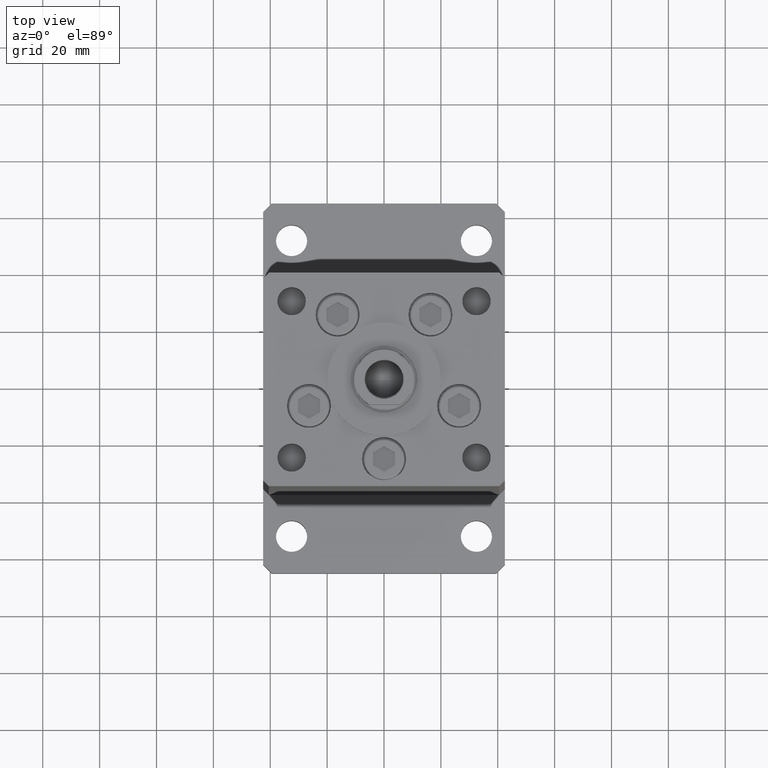
[diagram: clean part render]
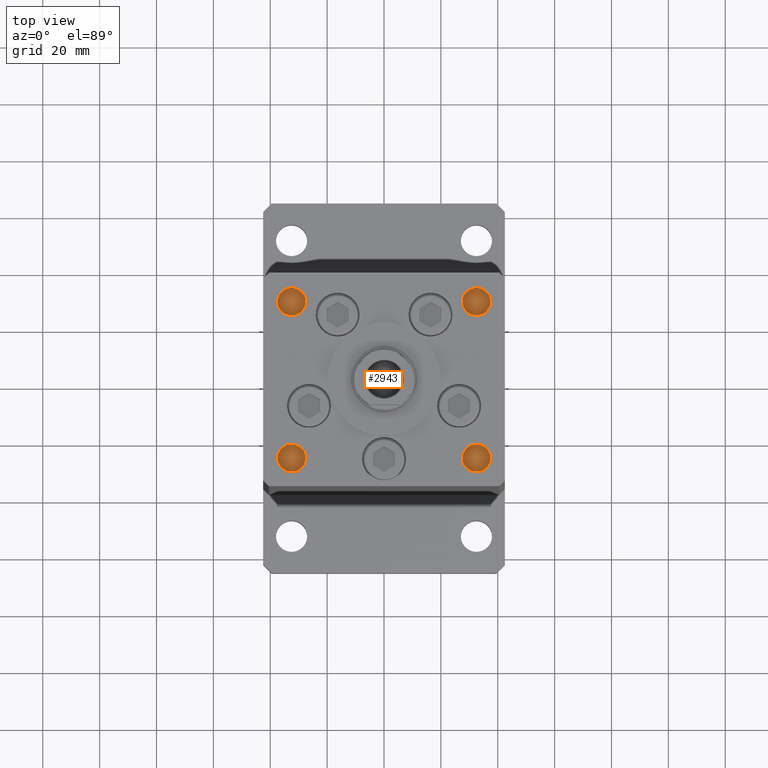
[diagram: same view with one face highlighted and labeled with its STEP entity id]
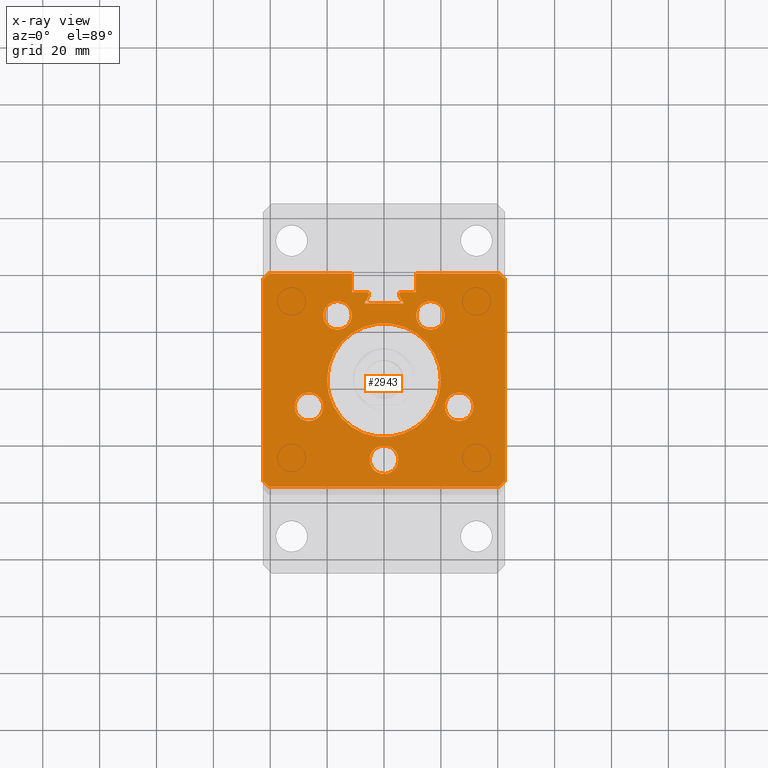
[diagram: x-ray of the same camera — body ghosted, the highlighted face saturated]
A machine part, top view. The second image highlights one B-rep face of the part: STEP entity #2943.
The next image is the same camera in x-ray: the body ghosted, the highlighted face saturated — about 0% of this face is hidden behind the body in this view.
In plain terms, the highlighted planar face has unit normal (0, 0, -1).
Its self-contained STEP definition (entity closure, byte-faithful):
#115 = LINE ( 'NONE', #12242, #24863 ) ;
#147 = LINE ( 'NONE', #21437, #51509 ) ;
#792 = CARTESIAN_POINT ( 'NONE',  ( -16.32291334290543361, 22.75000000000000000, 148.5000000000000000 ) ) ;
#1013 = CARTESIAN_POINT ( 'NONE',  ( 6.183333333333999704, 30.06666666666599141, 148.5000000000000000 ) ) ;
#1141 = EDGE_CURVE ( 'NONE', #39616, #48667, #28665, .T. ) ;
#1632 = VECTOR ( 'NONE', #21062, 1000.000000000000114 ) ;
#1979 = ORIENTED_EDGE ( 'NONE', *, *, #41454, .F. ) ;
#2943 = ADVANCED_FACE ( 'NONE', ( #4383, #45868, #46404, #49922, #33734, #13003, #20828 ), #8425, .F. ) ;
#2965 = LINE ( 'NONE', #36838, #37395 ) ;
#3091 = DIRECTION ( 'NONE',  ( 1.000000000000000000, 0.000000000000000000, 0.000000000000000000 ) ) ;
#3341 = CARTESIAN_POINT ( 'NONE',  ( -16.32291334290543361, 22.75000000000000000, 148.5000000000000000 ) ) ;
#3494 = CARTESIAN_POINT ( 'NONE',  ( 6.876153656360465938, 26.99999999999986855, 148.5000000000000000 ) ) ;
#3506 = CARTESIAN_POINT ( 'NONE',  ( 11.32291334290542650, 22.75000000000000355, 148.5000000000000000 ) ) ;
#3634 = ORIENTED_EDGE ( 'NONE', *, *, #52605, .F. ) ;
#3668 = CIRCLE ( 'NONE', #39815, 20.00000000000000000 ) ;
#4244 = CARTESIAN_POINT ( 'NONE',  ( -40.50000000000000000, 37.50000000000000711, 148.5000000000000000 ) ) ;
#4383 = FACE_BOUND ( 'NONE', #22548, .T. ) ;
#4505 = EDGE_CURVE ( 'NONE', #13477, #15932, #20716, .T. ) ;
#4669 = AXIS2_PLACEMENT_3D ( 'NONE', #13781, #30214, #46647 ) ;
#4763 = CARTESIAN_POINT ( 'NONE',  ( 42.50000000000000711, 35.50000000000001421, 148.5000000000000000 ) ) ;
#5068 = CARTESIAN_POINT ( 'NONE',  ( -42.50000000000000711, 35.50000000000001421, 148.5000000000000000 ) ) ;
#5661 = VERTEX_POINT ( 'NONE', #3494 ) ;
#5680 = VECTOR ( 'NONE', #45714, 1000.000000000000000 ) ;
#5934 = EDGE_CURVE ( 'NONE', #46121, #9819, #47781, .T. ) ;
#5956 = EDGE_CURVE ( 'NONE', #39419, #9635, #42587, .T. ) ;
#6110 = CARTESIAN_POINT ( 'NONE',  ( -26.39865316429777664, -9.333333333333333925, 148.5000000000000000 ) ) ;
#6300 = DIRECTION ( 'NONE',  ( 1.000000000000000000, 0.000000000000000000, 0.000000000000000000 ) ) ;
#7084 = ORIENTED_EDGE ( 'NONE', *, *, #1141, .F. ) ;
#7126 = DIRECTION ( 'NONE',  ( 1.000000000000000000, 0.000000000000000000, 0.000000000000000000 ) ) ;
#7292 = LINE ( 'NONE', #36113, #37283 ) ;
#7293 = EDGE_CURVE ( 'NONE', #29562, #49110, #30600, .T. ) ;
#7516 = CARTESIAN_POINT ( 'NONE',  ( 0.000000000000000000, 30.99999999999999289, 148.5000000000000000 ) ) ;
#7677 = VERTEX_POINT ( 'NONE', #12081 ) ;
#7745 = ORIENTED_EDGE ( 'NONE', *, *, #24093, .F. ) ;
#7761 = ORIENTED_EDGE ( 'NONE', *, *, #37413, .F. ) ;
#7898 = VECTOR ( 'NONE', #37012, 1000.000000000000000 ) ;
#8097 = DIRECTION ( 'NONE',  ( 1.000000000000000000, 0.000000000000000000, 0.000000000000000000 ) ) ;
#8289 = EDGE_CURVE ( 'NONE', #36262, #34194, #33933, .T. ) ;
#8425 = PLANE ( 'NONE',  #39053 ) ;
#9094 = ORIENTED_EDGE ( 'NONE', *, *, #21157, .F. ) ;
#9122 = ORIENTED_EDGE ( 'NONE', *, *, #43467, .F. ) ;
#9401 = AXIS2_PLACEMENT_3D ( 'NONE', #27608, #47842, #3091 ) ;
#9407 = EDGE_CURVE ( 'NONE', #25601, #40348, #2965, .T. ) ;
#9635 = VERTEX_POINT ( 'NONE', #36508 ) ;
#9650 = AXIS2_PLACEMENT_3D ( 'NONE', #3341, #44284, #7126 ) ;
#9819 = VERTEX_POINT ( 'NONE', #14390 ) ;
#10023 = ORIENTED_EDGE ( 'NONE', *, *, #51566, .T. ) ;
#10513 = VECTOR ( 'NONE', #51604, 1000.000000000000114 ) ;
#10700 = CARTESIAN_POINT ( 'NONE',  ( -21.39865316429777664, -9.333333333333333925, 148.5000000000000000 ) ) ;
#11160 = LINE ( 'NONE', #44006, #21763 ) ;
#11215 = ORIENTED_EDGE ( 'NONE', *, *, #19947, .T. ) ;
#11684 = CARTESIAN_POINT ( 'NONE',  ( -42.50000000000000711, 35.50000000000001421, 148.5000000000000000 ) ) ;
#11946 = ORIENTED_EDGE ( 'NONE', *, *, #28240, .F. ) ;
#12081 = CARTESIAN_POINT ( 'NONE',  ( -40.49999999999998579, -37.50000000000000711, 148.5000000000000000 ) ) ;
#12242 = CARTESIAN_POINT ( 'NONE',  ( 0.000000000000000000, 30.99999999999999289, 148.5000000000000000 ) ) ;
#12295 = EDGE_CURVE ( 'NONE', #9635, #39419, #40927, .T. ) ;
#12313 = EDGE_LOOP ( 'NONE', ( #44326, #26201 ) ) ;
#12515 = AXIS2_PLACEMENT_3D ( 'NONE', #49602, #25340, #8097 ) ;
#12837 = EDGE_CURVE ( 'NONE', #24551, #53288, #17440, .T. ) ;
#12845 = VECTOR ( 'NONE', #40793, 1000.000000000000114 ) ;
#12886 = DIRECTION ( 'NONE',  ( 1.000000000000000000, 0.000000000000000000, 0.000000000000000000 ) ) ;
#13001 = VERTEX_POINT ( 'NONE', #20884 ) ;
#13002 = VERTEX_POINT ( 'NONE', #38097 ) ;
#13003 = FACE_OUTER_BOUND ( 'NONE', #18069, .T. ) ;
#13074 = ORIENTED_EDGE ( 'NONE', *, *, #12837, .F. ) ;
#13240 = CARTESIAN_POINT ( 'NONE',  ( 42.49999999999998579, -35.50000000000000711, 148.5000000000000000 ) ) ;
#13413 = DIRECTION ( 'NONE',  ( 0.000000000000000000, 0.000000000000000000, -1.000000000000000000 ) ) ;
#13477 = VERTEX_POINT ( 'NONE', #11684 ) ;
#13646 = VECTOR ( 'NONE', #6300, 1000.000000000000000 ) ;
#13656 = DIRECTION ( 'NONE',  ( 1.000000000000000000, 0.000000000000000000, 0.000000000000000000 ) ) ;
#13691 = EDGE_CURVE ( 'NONE', #49110, #13705, #47897, .T. ) ;
#13705 = VERTEX_POINT ( 'NONE', #39908 ) ;
#13781 = CARTESIAN_POINT ( 'NONE',  ( 3.429011037612589276E-15, -28.00000000000000000, 148.5000000000000000 ) ) ;
#13823 = CARTESIAN_POINT ( 'NONE',  ( -20.00000000000000000, 0.000000000000000000, 148.5000000000000000 ) ) ;
#14009 = CARTESIAN_POINT ( 'NONE',  ( 5.000000000000004441, -28.00000000000000000, 148.5000000000000000 ) ) ;
#14123 = VERTEX_POINT ( 'NONE', #21709 ) ;
#14390 = CARTESIAN_POINT ( 'NONE',  ( 21.32291334290543006, 22.75000000000000355, 148.5000000000000000 ) ) ;
#14715 = VECTOR ( 'NONE', #23959, 1000.000000000000000 ) ;
#15448 = CARTESIAN_POINT ( 'NONE',  ( -6.183333333333999704, 30.99999999999999289, 148.5000000000000000 ) ) ;
#15473 = DIRECTION ( 'NONE',  ( 1.000000000000000000, 0.000000000000000000, 0.000000000000000000 ) ) ;
#15531 = DIRECTION ( 'NONE',  ( 0.000000000000000000, 0.000000000000000000, 1.000000000000000000 ) ) ;
#15932 = VERTEX_POINT ( 'NONE', #40393 ) ;
#16379 = VERTEX_POINT ( 'NONE', #23638 ) ;
#16898 = CARTESIAN_POINT ( 'NONE',  ( -6.876153656360465938, 26.99999999999986855, 148.5000000000000000 ) ) ;
#16924 = ORIENTED_EDGE ( 'NONE', *, *, #7293, .F. ) ;
#17440 = LINE ( 'NONE', #4763, #5680 ) ;
#17770 = AXIS2_PLACEMENT_3D ( 'NONE', #44200, #20714, #33088 ) ;
#17929 = VERTEX_POINT ( 'NONE', #35098 ) ;
#18069 = EDGE_LOOP ( 'NONE', ( #51594, #10023, #1979, #39235, #36020, #28620, #48261, #11946, #13074, #9122, #38710, #21905, #24197, #27114, #51036, #11215, #23406, #25297, #16924 ) ) ;
#18087 = CARTESIAN_POINT ( 'NONE',  ( -5.249999999999997335, 30.06666666666599141, 148.5000000000000000 ) ) ;
#18296 = CARTESIAN_POINT ( 'NONE',  ( -11.32291334290543361, 22.75000000000000000, 148.5000000000000000 ) ) ;
#18563 = DIRECTION ( 'NONE',  ( -1.000000000000000000, 0.000000000000000000, 0.000000000000000000 ) ) ;
#18994 = DIRECTION ( 'NONE',  ( 0.5000000000000003331, -0.8660254037844384856, 0.000000000000000000 ) ) ;
#19479 = EDGE_LOOP ( 'NONE', ( #40743, #45138 ) ) ;
#19566 = EDGE_CURVE ( 'NONE', #41871, #13705, #28866, .T. ) ;
#19589 = AXIS2_PLACEMENT_3D ( 'NONE', #6110, #15531, #39229 ) ;
#19597 = EDGE_CURVE ( 'NONE', #9819, #46121, #52416, .T. ) ;
#19947 = EDGE_CURVE ( 'NONE', #5661, #41871, #22850, .T. ) ;
#20186 = CARTESIAN_POINT ( 'NONE',  ( -11.25000000000000000, 30.99999999999999289, 148.5000000000000000 ) ) ;
#20452 = EDGE_CURVE ( 'NONE', #29562, #33920, #115, .T. ) ;
#20714 = DIRECTION ( 'NONE',  ( 0.000000000000000000, 0.000000000000000000, -1.000000000000000000 ) ) ;
#20716 = LINE ( 'NONE', #5068, #35660 ) ;
#20828 = FACE_BOUND ( 'NONE', #45720, .T. ) ;
#20884 = CARTESIAN_POINT ( 'NONE',  ( 40.50000000000000000, 37.50000000000000711, 148.5000000000000000 ) ) ;
#20954 = LINE ( 'NONE', #4244, #26105 ) ;
#21062 = DIRECTION ( 'NONE',  ( 0.5000000000000003331, 0.8660254037844384856, 0.000000000000000000 ) ) ;
#21157 = EDGE_CURVE ( 'NONE', #16379, #40956, #48128, .T. ) ;
#21176 = VERTEX_POINT ( 'NONE', #39475 ) ;
#21437 = CARTESIAN_POINT ( 'NONE',  ( -11.25000000000000000, 37.50000000000000000, 148.5000000000000000 ) ) ;
#21709 = CARTESIAN_POINT ( 'NONE',  ( -40.50000000000000000, 37.50000000000000711, 148.5000000000000000 ) ) ;
#21763 = VECTOR ( 'NONE', #18994, 1000.000000000000114 ) ;
#21905 = ORIENTED_EDGE ( 'NONE', *, *, #9407, .T. ) ;
#21994 = AXIS2_PLACEMENT_3D ( 'NONE', #47571, #22545, #38957 ) ;
#22545 = DIRECTION ( 'NONE',  ( 0.000000000000000000, 0.000000000000000000, 1.000000000000000000 ) ) ;
#22548 = EDGE_LOOP ( 'NONE', ( #7745, #9094 ) ) ;
#22804 = DIRECTION ( 'NONE',  ( 0.000000000000000000, 0.000000000000000000, 1.000000000000000000 ) ) ;
#22850 = LINE ( 'NONE', #43302, #50682 ) ;
#23406 = ORIENTED_EDGE ( 'NONE', *, *, #19566, .T. ) ;
#23638 = CARTESIAN_POINT ( 'NONE',  ( -31.39865316429778375, -9.333333333333333925, 148.5000000000000000 ) ) ;
#23749 = AXIS2_PLACEMENT_3D ( 'NONE', #45237, #32583, #23984 ) ;
#23959 = DIRECTION ( 'NONE',  ( -1.000000000000000000, 0.000000000000000000, 0.000000000000000000 ) ) ;
#23974 = AXIS2_PLACEMENT_3D ( 'NONE', #33702, #46370, #25901 ) ;
#23984 = DIRECTION ( 'NONE',  ( 1.000000000000000000, 0.000000000000000000, 0.000000000000000000 ) ) ;
#24093 = EDGE_CURVE ( 'NONE', #40956, #16379, #30768, .T. ) ;
#24197 = ORIENTED_EDGE ( 'NONE', *, *, #38804, .T. ) ;
#24551 = VERTEX_POINT ( 'NONE', #29550 ) ;
#24863 = VECTOR ( 'NONE', #33241, 1000.000000000000000 ) ;
#24869 = DIRECTION ( 'NONE',  ( 0.000000000000000000, 0.000000000000000000, -1.000000000000000000 ) ) ;
#25019 = DIRECTION ( 'NONE',  ( 2.931927001650941360E-16, -1.000000000000000000, 0.000000000000000000 ) ) ;
#25297 = ORIENTED_EDGE ( 'NONE', *, *, #13691, .F. ) ;
#25313 = DIRECTION ( 'NONE',  ( 1.000000000000000000, 0.000000000000000000, 0.000000000000000000 ) ) ;
#25340 = DIRECTION ( 'NONE',  ( 0.000000000000000000, 0.000000000000000000, -1.000000000000000000 ) ) ;
#25601 = VERTEX_POINT ( 'NONE', #39686 ) ;
#25901 = DIRECTION ( 'NONE',  ( 1.000000000000000000, 0.000000000000000000, 0.000000000000000000 ) ) ;
#26105 = VECTOR ( 'NONE', #45721, 1000.000000000000114 ) ;
#26201 = ORIENTED_EDGE ( 'NONE', *, *, #5934, .F. ) ;
#26259 = LINE ( 'NONE', #42679, #13646 ) ;
#26515 = EDGE_CURVE ( 'NONE', #25601, #13001, #147, .T. ) ;
#27114 = ORIENTED_EDGE ( 'NONE', *, *, #32741, .F. ) ;
#27315 = CARTESIAN_POINT ( 'NONE',  ( 40.50000000000000000, 37.50000000000000711, 148.5000000000000000 ) ) ;
#27608 = CARTESIAN_POINT ( 'NONE',  ( -26.39865316429777664, -9.333333333333333925, 148.5000000000000000 ) ) ;
#27881 = CIRCLE ( 'NONE', #4669, 5.000000000000000888 ) ;
#27959 = AXIS2_PLACEMENT_3D ( 'NONE', #43252, #22804, #13656 ) ;
#28112 = CARTESIAN_POINT ( 'NONE',  ( -21.32291334290543716, 22.75000000000000000, 148.5000000000000000 ) ) ;
#28240 = EDGE_CURVE ( 'NONE', #53288, #21176, #46376, .T. ) ;
#28383 = CARTESIAN_POINT ( 'NONE',  ( 21.39865316429778019, -9.333333333333326820, 148.5000000000000000 ) ) ;
#28433 = CIRCLE ( 'NONE', #49108, 5.000000000000000888 ) ;
#28620 = ORIENTED_EDGE ( 'NONE', *, *, #46214, .T. ) ;
#28665 = CIRCLE ( 'NONE', #30413, 20.00000000000000000 ) ;
#28866 = LINE ( 'NONE', #41262, #1632 ) ;
#29202 = CARTESIAN_POINT ( 'NONE',  ( -11.25000000000000000, 37.50000000000000000, 148.5000000000000000 ) ) ;
#29226 = CARTESIAN_POINT ( 'NONE',  ( 42.49999999999998579, -35.50000000000000711, 148.5000000000000000 ) ) ;
#29351 = DIRECTION ( 'NONE',  ( 0.000000000000000000, 0.000000000000000000, 1.000000000000000000 ) ) ;
#29550 = CARTESIAN_POINT ( 'NONE',  ( 42.50000000000000711, 35.50000000000001421, 148.5000000000000000 ) ) ;
#29562 = VERTEX_POINT ( 'NONE', #15448 ) ;
#29944 = DIRECTION ( 'NONE',  ( 0.000000000000000000, 1.000000000000000000, 0.000000000000000000 ) ) ;
#30214 = DIRECTION ( 'NONE',  ( 0.000000000000000000, 0.000000000000000000, 1.000000000000000000 ) ) ;
#30325 = CARTESIAN_POINT ( 'NONE',  ( -4.999999999999997335, -28.00000000000000000, 148.5000000000000000 ) ) ;
#30413 = AXIS2_PLACEMENT_3D ( 'NONE', #43027, #30650, #47076 ) ;
#30475 = CARTESIAN_POINT ( 'NONE',  ( -11.25000000000000000, 0.000000000000000000, 148.5000000000000000 ) ) ;
#30600 = CIRCLE ( 'NONE', #12515, 0.9333333333340015914 ) ;
#30650 = DIRECTION ( 'NONE',  ( -0.000000000000000000, 0.000000000000000000, 1.000000000000000000 ) ) ;
#30768 = CIRCLE ( 'NONE', #19589, 5.000000000000000888 ) ;
#30770 = ORIENTED_EDGE ( 'NONE', *, *, #44138, .F. ) ;
#30916 = CIRCLE ( 'NONE', #44663, 0.9333333333340015914 ) ;
#30966 = VERTEX_POINT ( 'NONE', #40619 ) ;
#31065 = EDGE_CURVE ( 'NONE', #7677, #21176, #26259, .T. ) ;
#32227 = AXIS2_PLACEMENT_3D ( 'NONE', #792, #29351, #25313 ) ;
#32333 = EDGE_LOOP ( 'NONE', ( #43255, #48710 ) ) ;
#32583 = DIRECTION ( 'NONE',  ( 0.000000000000000000, 0.000000000000000000, 1.000000000000000000 ) ) ;
#32741 = EDGE_CURVE ( 'NONE', #13002, #30966, #30916, .T. ) ;
#32850 = CIRCLE ( 'NONE', #9650, 5.000000000000000888 ) ;
#33088 = DIRECTION ( 'NONE',  ( 1.000000000000000000, 0.000000000000000000, 0.000000000000000000 ) ) ;
#33202 = CARTESIAN_POINT ( 'NONE',  ( 0.000000000000000000, 0.000000000000000000, 148.5000000000000000 ) ) ;
#33241 = DIRECTION ( 'NONE',  ( -1.000000000000000000, 0.000000000000000000, 0.000000000000000000 ) ) ;
#33702 = CARTESIAN_POINT ( 'NONE',  ( 16.32291334290542650, 22.75000000000000355, 148.5000000000000000 ) ) ;
#33734 = FACE_BOUND ( 'NONE', #19479, .T. ) ;
#33920 = VERTEX_POINT ( 'NONE', #20186 ) ;
#33933 = CIRCLE ( 'NONE', #32227, 5.000000000000000888 ) ;
#34194 = VERTEX_POINT ( 'NONE', #28112 ) ;
#35098 = CARTESIAN_POINT ( 'NONE',  ( -11.25000000000000000, 37.50000000000000000, 148.5000000000000000 ) ) ;
#35660 = VECTOR ( 'NONE', #25019, 1000.000000000000000 ) ;
#36020 = ORIENTED_EDGE ( 'NONE', *, *, #4505, .T. ) ;
#36113 = CARTESIAN_POINT ( 'NONE',  ( -42.49999999999998579, -35.50000000000000711, 148.5000000000000000 ) ) ;
#36262 = VERTEX_POINT ( 'NONE', #18296 ) ;
#36508 = CARTESIAN_POINT ( 'NONE',  ( 31.39865316429777664, -9.333333333333326820, 148.5000000000000000 ) ) ;
#36718 = DIRECTION ( 'NONE',  ( 0.000000000000000000, 0.000000000000000000, 1.000000000000000000 ) ) ;
#36838 = CARTESIAN_POINT ( 'NONE',  ( 11.25000000000000000, 0.000000000000000000, 148.5000000000000000 ) ) ;
#37012 = DIRECTION ( 'NONE',  ( 1.000000000000000000, 0.000000000000000000, 0.000000000000000000 ) ) ;
#37283 = VECTOR ( 'NONE', #52576, 1000.000000000000114 ) ;
#37395 = VECTOR ( 'NONE', #53043, 1000.000000000000000 ) ;
#37413 = EDGE_CURVE ( 'NONE', #41239, #37982, #28433, .T. ) ;
#37982 = VERTEX_POINT ( 'NONE', #14009 ) ;
#38097 = CARTESIAN_POINT ( 'NONE',  ( 5.375042956467944499, 29.59999999999899245, 148.5000000000000000 ) ) ;
#38710 = ORIENTED_EDGE ( 'NONE', *, *, #26515, .F. ) ;
#38804 = EDGE_CURVE ( 'NONE', #40348, #30966, #53340, .T. ) ;
#38957 = DIRECTION ( 'NONE',  ( 1.000000000000000000, 0.000000000000000000, 0.000000000000000000 ) ) ;
#39053 = AXIS2_PLACEMENT_3D ( 'NONE', #33202, #24869, #41293 ) ;
#39229 = DIRECTION ( 'NONE',  ( 1.000000000000000000, 0.000000000000000000, 0.000000000000000000 ) ) ;
#39235 = ORIENTED_EDGE ( 'NONE', *, *, #45544, .T. ) ;
#39419 = VERTEX_POINT ( 'NONE', #28383 ) ;
#39475 = CARTESIAN_POINT ( 'NONE',  ( 40.49999999999998579, -37.50000000000000711, 148.5000000000000000 ) ) ;
#39616 = VERTEX_POINT ( 'NONE', #13823 ) ;
#39686 = CARTESIAN_POINT ( 'NONE',  ( 11.24999999999999289, 37.50000000000000000, 148.5000000000000000 ) ) ;
#39815 = AXIS2_PLACEMENT_3D ( 'NONE', #41116, #45419, #53280 ) ;
#39908 = CARTESIAN_POINT ( 'NONE',  ( -5.375042956467944499, 29.59999999999899600, 148.4999999999999716 ) ) ;
#39926 = VECTOR ( 'NONE', #29944, 1000.000000000000000 ) ;
#40348 = VERTEX_POINT ( 'NONE', #48816 ) ;
#40393 = CARTESIAN_POINT ( 'NONE',  ( -42.49999999999998579, -35.50000000000000711, 148.5000000000000000 ) ) ;
#40619 = CARTESIAN_POINT ( 'NONE',  ( 6.183333333333999704, 30.99999999999999289, 148.5000000000000000 ) ) ;
#40743 = ORIENTED_EDGE ( 'NONE', *, *, #8289, .F. ) ;
#40793 = DIRECTION ( 'NONE',  ( -0.7071067811865474617, -0.7071067811865474617, 0.000000000000000000 ) ) ;
#40927 = CIRCLE ( 'NONE', #23749, 4.999999999999997335 ) ;
#40956 = VERTEX_POINT ( 'NONE', #10700 ) ;
#41116 = CARTESIAN_POINT ( 'NONE',  ( 0.000000000000000000, 0.000000000000000000, 148.5000000000000000 ) ) ;
#41239 = VERTEX_POINT ( 'NONE', #30325 ) ;
#41262 = CARTESIAN_POINT ( 'NONE',  ( -16.84845819336021577, 9.727461873366683776, 148.5000000000000000 ) ) ;
#41293 = DIRECTION ( 'NONE',  ( -1.000000000000000000, 0.000000000000000000, -0.000000000000000000 ) ) ;
#41409 = EDGE_CURVE ( 'NONE', #34194, #36262, #32850, .T. ) ;
#41454 = EDGE_CURVE ( 'NONE', #14123, #17929, #45084, .T. ) ;
#41573 = CARTESIAN_POINT ( 'NONE',  ( 20.00000000000000000, 2.449293598294706513E-15, 148.5000000000000000 ) ) ;
#41871 = VERTEX_POINT ( 'NONE', #16898 ) ;
#42587 = CIRCLE ( 'NONE', #27959, 4.999999999999997335 ) ;
#42679 = CARTESIAN_POINT ( 'NONE',  ( -40.49999999999998579, -37.50000000000000711, 148.5000000000000000 ) ) ;
#43027 = CARTESIAN_POINT ( 'NONE',  ( 0.000000000000000000, 0.000000000000000000, 148.5000000000000000 ) ) ;
#43252 = CARTESIAN_POINT ( 'NONE',  ( 26.39865316429777664, -9.333333333333326820, 148.5000000000000000 ) ) ;
#43255 = ORIENTED_EDGE ( 'NONE', *, *, #12295, .F. ) ;
#43302 = CARTESIAN_POINT ( 'NONE',  ( 0.000000000000000000, 26.99999999999986855, 148.5000000000000000 ) ) ;
#43467 = EDGE_CURVE ( 'NONE', #13001, #24551, #51864, .T. ) ;
#44006 = CARTESIAN_POINT ( 'NONE',  ( 16.84845819336021577, 9.727461873366683776, 148.5000000000000000 ) ) ;
#44138 = EDGE_CURVE ( 'NONE', #48667, #39616, #3668, .T. ) ;
#44200 = CARTESIAN_POINT ( 'NONE',  ( -6.183333333333999704, 30.06666666666599141, 148.5000000000000000 ) ) ;
#44284 = DIRECTION ( 'NONE',  ( 0.000000000000000000, 0.000000000000000000, 1.000000000000000000 ) ) ;
#44326 = ORIENTED_EDGE ( 'NONE', *, *, #19597, .F. ) ;
#44663 = AXIS2_PLACEMENT_3D ( 'NONE', #1013, #13413, #12886 ) ;
#45084 = LINE ( 'NONE', #29202, #7898 ) ;
#45138 = ORIENTED_EDGE ( 'NONE', *, *, #41409, .F. ) ;
#45237 = CARTESIAN_POINT ( 'NONE',  ( 26.39865316429777664, -9.333333333333326820, 148.5000000000000000 ) ) ;
#45399 = DIRECTION ( 'NONE',  ( 1.000000000000000000, 0.000000000000000000, 0.000000000000000000 ) ) ;
#45419 = DIRECTION ( 'NONE',  ( -0.000000000000000000, 0.000000000000000000, 1.000000000000000000 ) ) ;
#45544 = EDGE_CURVE ( 'NONE', #14123, #13477, #20954, .T. ) ;
#45714 = DIRECTION ( 'NONE',  ( -2.931927001650941360E-16, -1.000000000000000000, 0.000000000000000000 ) ) ;
#45720 = EDGE_LOOP ( 'NONE', ( #7084, #30770 ) ) ;
#45721 = DIRECTION ( 'NONE',  ( -0.7071067811865500152, -0.7071067811865451302, 0.000000000000000000 ) ) ;
#45868 = FACE_BOUND ( 'NONE', #50038, .T. ) ;
#46121 = VERTEX_POINT ( 'NONE', #3506 ) ;
#46214 = EDGE_CURVE ( 'NONE', #15932, #7677, #7292, .T. ) ;
#46370 = DIRECTION ( 'NONE',  ( 0.000000000000000000, 0.000000000000000000, 1.000000000000000000 ) ) ;
#46376 = LINE ( 'NONE', #13240, #12845 ) ;
#46404 = FACE_BOUND ( 'NONE', #32333, .T. ) ;
#46639 = LINE ( 'NONE', #30475, #39926 ) ;
#46647 = DIRECTION ( 'NONE',  ( 1.000000000000000000, 0.000000000000000000, 0.000000000000000000 ) ) ;
#47076 = DIRECTION ( 'NONE',  ( 1.000000000000000000, 0.000000000000000000, 0.000000000000000000 ) ) ;
#47571 = CARTESIAN_POINT ( 'NONE',  ( 16.32291334290542650, 22.75000000000000355, 148.5000000000000000 ) ) ;
#47781 = CIRCLE ( 'NONE', #21994, 5.000000000000000888 ) ;
#47842 = DIRECTION ( 'NONE',  ( 0.000000000000000000, 0.000000000000000000, 1.000000000000000000 ) ) ;
#47897 = CIRCLE ( 'NONE', #17770, 0.9333333333340015914 ) ;
#48128 = CIRCLE ( 'NONE', #9401, 5.000000000000000888 ) ;
#48261 = ORIENTED_EDGE ( 'NONE', *, *, #31065, .T. ) ;
#48506 = EDGE_CURVE ( 'NONE', #13002, #5661, #11160, .T. ) ;
#48667 = VERTEX_POINT ( 'NONE', #41573 ) ;
#48710 = ORIENTED_EDGE ( 'NONE', *, *, #5956, .F. ) ;
#48816 = CARTESIAN_POINT ( 'NONE',  ( 11.25000000000000000, 30.99999999999999289, 148.5000000000000000 ) ) ;
#49108 = AXIS2_PLACEMENT_3D ( 'NONE', #49130, #36718, #15473 ) ;
#49110 = VERTEX_POINT ( 'NONE', #18087 ) ;
#49130 = CARTESIAN_POINT ( 'NONE',  ( 3.429011037612589276E-15, -28.00000000000000000, 148.5000000000000000 ) ) ;
#49602 = CARTESIAN_POINT ( 'NONE',  ( -6.183333333333999704, 30.06666666666599141, 148.5000000000000000 ) ) ;
#49922 = FACE_BOUND ( 'NONE', #12313, .T. ) ;
#50038 = EDGE_LOOP ( 'NONE', ( #3634, #7761 ) ) ;
#50682 = VECTOR ( 'NONE', #18563, 1000.000000000000000 ) ;
#51036 = ORIENTED_EDGE ( 'NONE', *, *, #48506, .T. ) ;
#51509 = VECTOR ( 'NONE', #45399, 1000.000000000000000 ) ;
#51566 = EDGE_CURVE ( 'NONE', #33920, #17929, #46639, .T. ) ;
#51594 = ORIENTED_EDGE ( 'NONE', *, *, #20452, .T. ) ;
#51604 = DIRECTION ( 'NONE',  ( 0.7071067811865500152, -0.7071067811865451302, 0.000000000000000000 ) ) ;
#51864 = LINE ( 'NONE', #27315, #10513 ) ;
#52416 = CIRCLE ( 'NONE', #23974, 5.000000000000000888 ) ;
#52576 = DIRECTION ( 'NONE',  ( 0.7071067811865474617, -0.7071067811865474617, 0.000000000000000000 ) ) ;
#52605 = EDGE_CURVE ( 'NONE', #37982, #41239, #27881, .T. ) ;
#53043 = DIRECTION ( 'NONE',  ( -0.000000000000000000, -1.000000000000000000, 0.000000000000000000 ) ) ;
#53280 = DIRECTION ( 'NONE',  ( 1.000000000000000000, 0.000000000000000000, 0.000000000000000000 ) ) ;
#53288 = VERTEX_POINT ( 'NONE', #29226 ) ;
#53340 = LINE ( 'NONE', #7516, #14715 ) ;